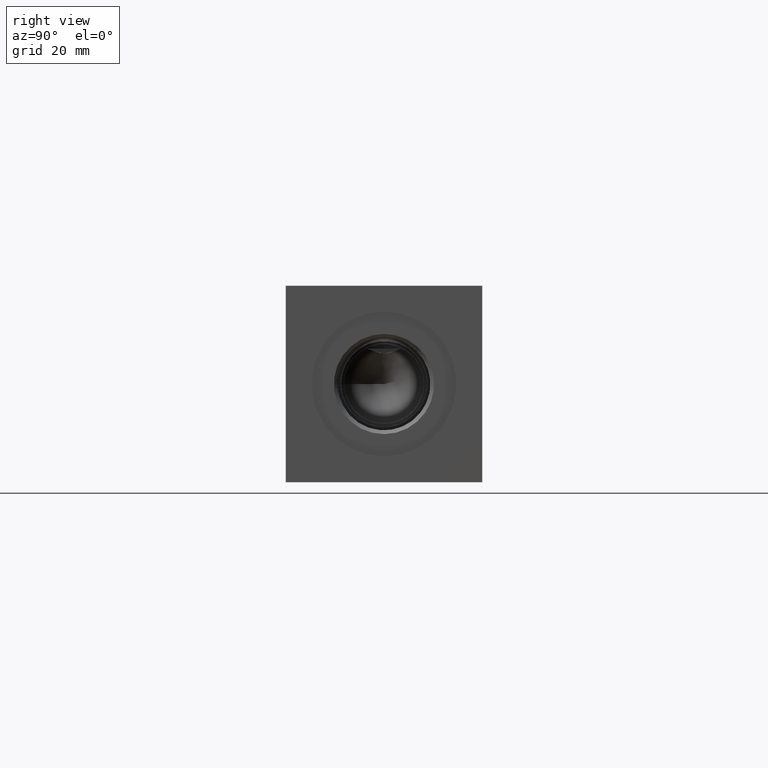
[diagram: clean part render]
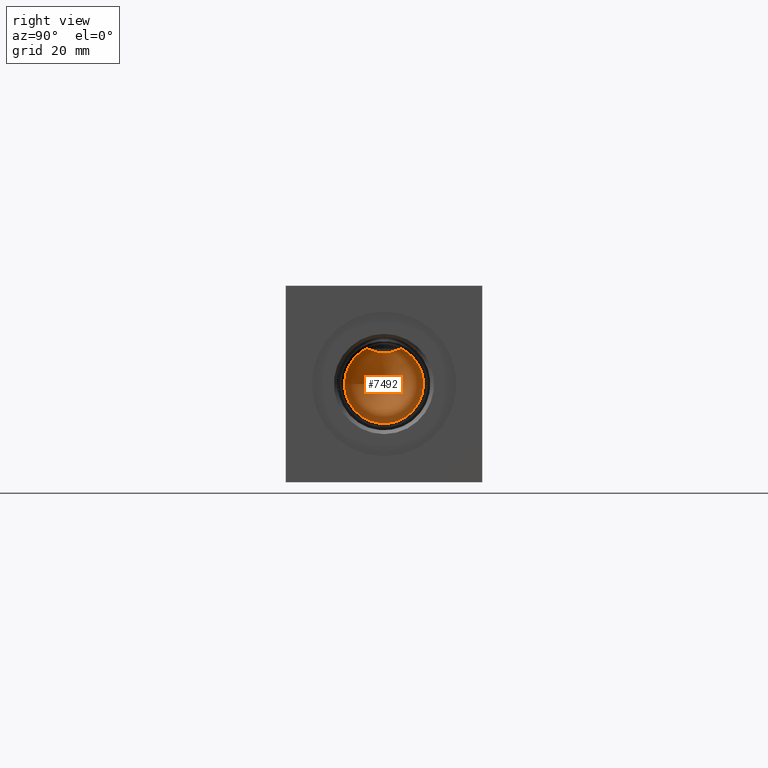
[diagram: same view with one face highlighted and labeled with its STEP entity id]
A machine part, right view. The second image highlights one B-rep face of the part: STEP entity #7492.
In plain terms, the highlighted conical surface has half-angle 60 deg.
Its self-contained STEP definition (entity closure, byte-faithful):
#18=CONICAL_SURFACE('',#7816,5.7531,1.0471975511966);
#110=CIRCLE('',#7814,11.5062);
#111=CIRCLE('',#7815,11.5062);
#774=FACE_OUTER_BOUND('',#1193,.T.);
#1193=EDGE_LOOP('',(#6483,#6484,#6485,#6486,#6487,#6488,#6489));
#1899=LINE('',#12917,#2583);
#2583=VECTOR('',#9099,5.7531);
#2874=B_SPLINE_CURVE_WITH_KNOTS('',3,(#12893,#12894,#12895,#12896),
 .UNSPECIFIED.,.F.,.F.,(4,4),(4.41412142471719,4.42547324670228),
 .UNSPECIFIED.);
#2875=B_SPLINE_CURVE_WITH_KNOTS('',3,(#12898,#12899,#12900,#12901,#12902,
#12903,#12904,#12905,#12906,#12907,#12908,#12909,#12910,#12911),
 .UNSPECIFIED.,.F.,.F.,(4,2,2,2,2,2,4),(2.13394439789774,2.39047020700237,
2.56121807893112,2.73196595085986,2.9027138227886,3.07346169471734,3.32998750382198),
 .UNSPECIFIED.);
#2876=B_SPLINE_CURVE_WITH_KNOTS('',3,(#12912,#12913,#12914,#12915),
 .UNSPECIFIED.,.F.,.F.,(4,4),(5.70883093887666,5.72018276086175),
 .UNSPECIFIED.);
#3507=VERTEX_POINT('',#12875);
#3508=VERTEX_POINT('',#12877);
#3509=VERTEX_POINT('',#12879);
#3510=VERTEX_POINT('',#12892);
#3511=VERTEX_POINT('',#12897);
#3512=VERTEX_POINT('',#12916);
#4521=EDGE_CURVE('',#3508,#3507,#110,.T.);
#4523=EDGE_CURVE('',#3507,#3509,#111,.T.);
#4524=EDGE_CURVE('',#3510,#3509,#2874,.T.);
#4525=EDGE_CURVE('',#3511,#3510,#2875,.T.);
#4526=EDGE_CURVE('',#3508,#3511,#2876,.T.);
#4527=EDGE_CURVE('',#3507,#3512,#1899,.T.);
#6483=ORIENTED_EDGE('',*,*,#4524,.F.);
#6484=ORIENTED_EDGE('',*,*,#4525,.F.);
#6485=ORIENTED_EDGE('',*,*,#4526,.F.);
#6486=ORIENTED_EDGE('',*,*,#4521,.T.);
#6487=ORIENTED_EDGE('',*,*,#4527,.T.);
#6488=ORIENTED_EDGE('',*,*,#4527,.F.);
#6489=ORIENTED_EDGE('',*,*,#4523,.T.);
#7492=ADVANCED_FACE('',(#774),#18,.F.);
#7814=AXIS2_PLACEMENT_3D('',#12878,#9093,#9094);
#7815=AXIS2_PLACEMENT_3D('',#12890,#9095,#9096);
#7816=AXIS2_PLACEMENT_3D('',#12891,#9097,#9098);
#9093=DIRECTION('center_axis',(1.,0.,0.));
#9094=DIRECTION('ref_axis',(0.,1.,0.));
#9095=DIRECTION('center_axis',(1.,0.,0.));
#9096=DIRECTION('ref_axis',(0.,1.,0.));
#9097=DIRECTION('center_axis',(1.,0.,0.));
#9098=DIRECTION('ref_axis',(0.,1.,0.));
#9099=DIRECTION('',(-0.5,0.866025403784439,1.06057523872491E-16));
#12875=CARTESIAN_POINT('',(165.98301,17.0688,28.575));
#12877=CARTESIAN_POINT('',(165.98301,23.6504374377109,38.9741019809453));
#12878=CARTESIAN_POINT('Origin',(165.98301,28.575,28.575));
#12879=CARTESIAN_POINT('',(165.98301,33.4995625622891,38.9741019809453));
#12890=CARTESIAN_POINT('Origin',(165.98301,28.575,28.575));
#12891=CARTESIAN_POINT('Origin',(162.661456166325,28.575,28.575));
#12892=CARTESIAN_POINT('',(165.943881897723,33.5565472828839,38.87169));
#12893=CARTESIAN_POINT('Ctrl Pts',(165.943881897723,33.5565472828839,38.87169));
#12894=CARTESIAN_POINT('Ctrl Pts',(165.956934706798,33.5376976440896,38.9059244792466));
#12895=CARTESIAN_POINT('Ctrl Pts',(165.969978796945,33.5187022972031,38.9400646306579));
#12896=CARTESIAN_POINT('Ctrl Pts',(165.98301,33.4995625622891,38.9741019809453));
#12897=CARTESIAN_POINT('',(165.943881897723,23.5934527171161,38.87169));
#12898=CARTESIAN_POINT('Ctrl Pts',(165.943881897723,23.5934527171161,38.87169));
#12899=CARTESIAN_POINT('Ctrl Pts',(165.632515483229,24.2514633256343,38.5909336252092));
#12900=CARTESIAN_POINT('Ctrl Pts',(165.345994820785,24.9088671272217,38.3278680423649));
#12901=CARTESIAN_POINT('Ctrl Pts',(164.94182037904,26.0444317686192,37.9500312577053));
#12902=CARTESIAN_POINT('Ctrl Pts',(164.800087487218,26.5078953287233,37.8154029417096));
#12903=CARTESIAN_POINT('Ctrl Pts',(164.588263306293,27.4885923612836,37.6122949617681));
#12904=CARTESIAN_POINT('Ctrl Pts',(164.518121419579,28.0058404269042,37.5439385512841));
#12905=CARTESIAN_POINT('Ctrl Pts',(164.518121419579,29.1441595730958,37.5439385512841));
#12906=CARTESIAN_POINT('Ctrl Pts',(164.588263306293,29.6614076387164,37.6122949617682));
#12907=CARTESIAN_POINT('Ctrl Pts',(164.800087487218,30.6421046712766,37.8154029417096));
#12908=CARTESIAN_POINT('Ctrl Pts',(164.94182037904,31.1055682313808,37.9500312577053));
#12909=CARTESIAN_POINT('Ctrl Pts',(165.345994820785,32.2411328727783,38.3278680423649));
#12910=CARTESIAN_POINT('Ctrl Pts',(165.632515483229,32.8985366743658,38.5909336252092));
#12911=CARTESIAN_POINT('Ctrl Pts',(165.943881897723,33.5565472828839,38.87169));
#12912=CARTESIAN_POINT('Ctrl Pts',(165.98301,23.6504374377109,38.9741019809453));
#12913=CARTESIAN_POINT('Ctrl Pts',(165.969978769842,23.6312976629891,38.9400645598653));
#12914=CARTESIAN_POINT('Ctrl Pts',(165.956934740896,23.6123024051515,38.9059245686776));
#12915=CARTESIAN_POINT('Ctrl Pts',(165.943881897723,23.5934527171161,38.87169));
#12916=CARTESIAN_POINT('',(159.33990233265,28.575,28.575));
#12917=CARTESIAN_POINT('',(162.661456166325,22.8219,28.575));